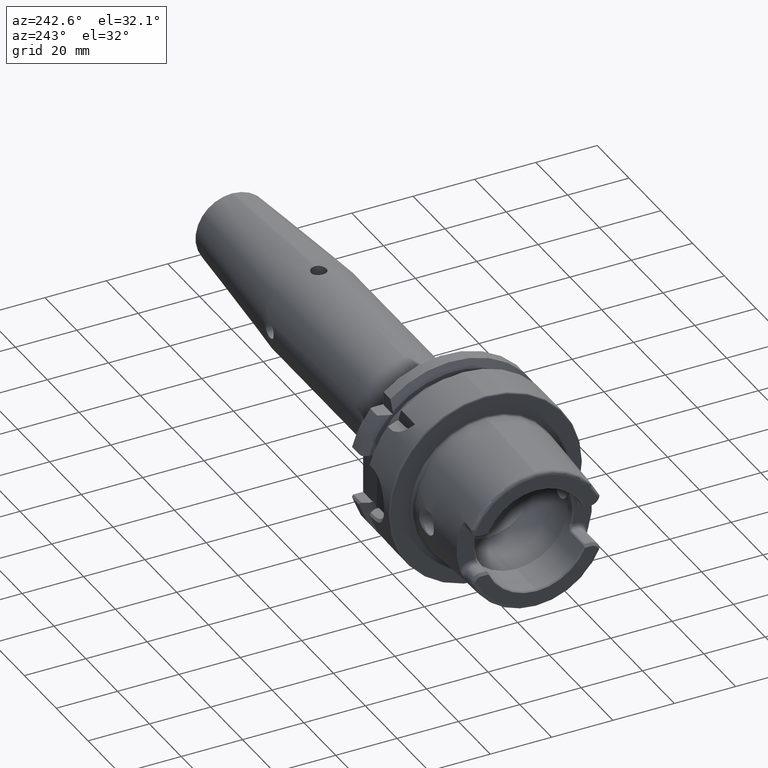
[diagram: clean part render]
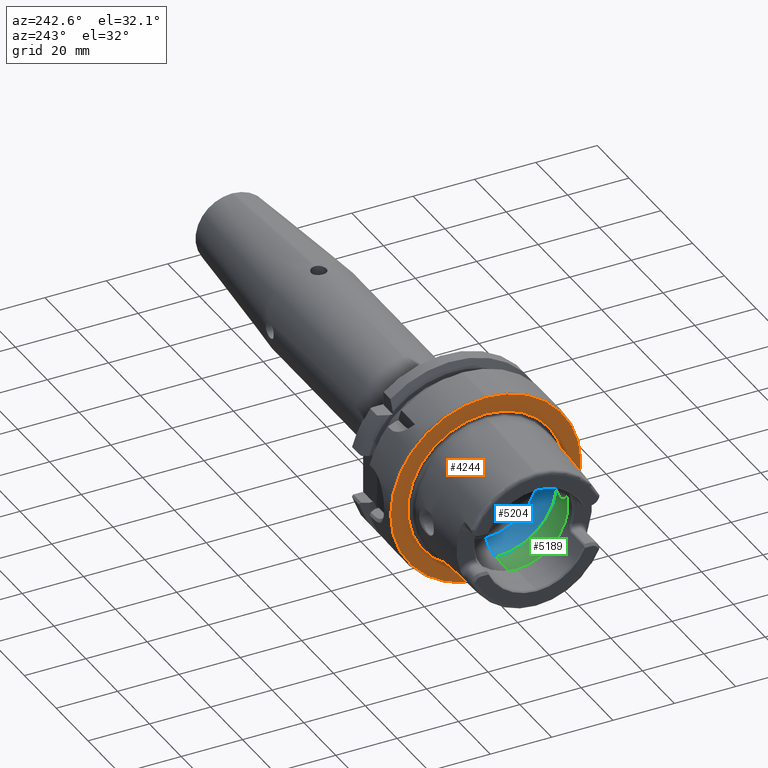
[diagram: same view with three faces highlighted in distinct colors, each labeled with its STEP entity id]
A machine part, auxiliary view with three faces highlighted in distinct colors.
Their STEP definitions:

[orange] entity #4244 — the highlighted planar face has unit normal (1, 0, 0).
#1121=CARTESIAN_POINT('',(0.E0,0.E0,0.E0));
#1122=DIRECTION('',(1.E0,0.E0,0.E0));
#1123=DIRECTION('',(0.E0,0.E0,-1.E0));
#1124=AXIS2_PLACEMENT_3D('',#1121,#1122,#1123);
#1126=CARTESIAN_POINT('',(0.E0,0.E0,0.E0));
#1127=DIRECTION('',(1.E0,0.E0,0.E0));
#1128=DIRECTION('',(0.E0,0.E0,1.E0));
#1129=AXIS2_PLACEMENT_3D('',#1126,#1127,#1128);
#1131=CARTESIAN_POINT('',(0.E0,0.E0,0.E0));
#1132=DIRECTION('',(-1.E0,0.E0,0.E0));
#1133=DIRECTION('',(0.E0,0.E0,1.E0));
#1134=AXIS2_PLACEMENT_3D('',#1131,#1132,#1133);
#1136=CARTESIAN_POINT('',(0.E0,0.E0,0.E0));
#1137=DIRECTION('',(-1.E0,0.E0,0.E0));
#1138=DIRECTION('',(0.E0,0.E0,-1.E0));
#1139=AXIS2_PLACEMENT_3D('',#1136,#1137,#1138);
#2733=CARTESIAN_POINT('',(0.E0,0.E0,-2.54204E1));
#2734=CARTESIAN_POINT('',(0.E0,0.E0,2.54204E1));
#2735=VERTEX_POINT('',#2733);
#2736=VERTEX_POINT('',#2734);
#3062=CARTESIAN_POINT('',(0.E0,0.E0,3.1E1));
#3063=CARTESIAN_POINT('',(0.E0,1.138921523207E-14,-3.1E1));
#3064=VERTEX_POINT('',#3062);
#3065=VERTEX_POINT('',#3063);
#4228=CARTESIAN_POINT('',(0.E0,0.E0,0.E0));
#4229=DIRECTION('',(1.E0,0.E0,0.E0));
#4230=DIRECTION('',(0.E0,0.E0,1.E0));
#4231=AXIS2_PLACEMENT_3D('',#4228,#4229,#4230);
#4232=PLANE('',#4231);
#4233=ORIENTED_EDGE('',*,*,#4218,.F.);
#4235=ORIENTED_EDGE('',*,*,#4234,.F.);
#4236=EDGE_LOOP('',(#4233,#4235));
#4237=FACE_OUTER_BOUND('',#4236,.F.);
#4239=ORIENTED_EDGE('',*,*,#4238,.F.);
#4241=ORIENTED_EDGE('',*,*,#4240,.F.);
#4242=EDGE_LOOP('',(#4239,#4241));
#4243=FACE_BOUND('',#4242,.F.);
#4244=ADVANCED_FACE('',(#4237,#4243),#4232,.F.);
#1125=CIRCLE('',#1124,2.54204E1);
#1130=CIRCLE('',#1129,2.54204E1);
#1135=CIRCLE('',#1134,3.1E1);
#1140=CIRCLE('',#1139,3.1E1);
#4218=EDGE_CURVE('',#3064,#3065,#1135,.T.);
#4234=EDGE_CURVE('',#3065,#3064,#1140,.T.);
#4238=EDGE_CURVE('',#2735,#2736,#1125,.T.);
#4240=EDGE_CURVE('',#2736,#2735,#1130,.T.);

[blue] entity #5204 — the highlighted toroidal blend (fillet) surface has major radius 11.7986 mm and minor (blend) radius 8.2014 mm.
#267=CARTESIAN_POINT('',(9.100685570619E-2,0.E0,0.E0));
#268=DIRECTION('',(1.E0,0.E0,0.E0));
#269=DIRECTION('',(0.E0,0.E0,1.E0));
#270=AXIS2_PLACEMENT_3D('',#267,#268,#269);
#1891=CARTESIAN_POINT('',(-6.25E0,-1.983683432405E1,-2.549509756796E0));
#1893=CARTESIAN_POINT('',(-6.25E0,-1.983683432405E1,2.549509756796E0));
#1909=CARTESIAN_POINT('',(-6.25E0,0.E0,0.E0));
#1910=DIRECTION('',(1.E0,0.E0,0.E0));
#1911=DIRECTION('',(0.E0,0.E0,1.E0));
#1912=AXIS2_PLACEMENT_3D('',#1909,#1910,#1911);
#1922=CARTESIAN_POINT('',(-6.25E0,0.E0,0.E0));
#1923=DIRECTION('',(1.E0,0.E0,0.E0));
#1924=DIRECTION('',(0.E0,-9.918417211620E-1,-1.274754884772E-1));
#1925=AXIS2_PLACEMENT_3D('',#1922,#1923,#1924);
#1927=CARTESIAN_POINT('',(-6.25E0,-1.983683432405E1,-2.549509756796E0));
#1928=CARTESIAN_POINT('',(-6.101283299350E0,-1.985745106764E1,
-2.389098161705E0));
#1929=CARTESIAN_POINT('',(-5.823011759718E0,-1.989111915045E1,
-2.033654081724E0));
#1930=CARTESIAN_POINT('',(-5.488290434370E0,-1.992204764600E1,
-1.383194941896E0));
#1931=CARTESIAN_POINT('',(-5.289411510405E0,-1.993633365189E1,
-6.797937079503E-1));
#1932=CARTESIAN_POINT('',(-5.25E0,-1.993880636712E1,-2.232966073821E-1));
#1933=CARTESIAN_POINT('',(-5.25E0,-1.993880636712E1,-1.256780224004E-14));
#1935=CARTESIAN_POINT('',(-6.25E0,0.E0,-1.179860506927E1));
#1936=DIRECTION('',(0.E0,1.E0,0.E0));
#1937=DIRECTION('',(7.731620031199E-1,0.E0,-6.342085752586E-1));
#1938=AXIS2_PLACEMENT_3D('',#1935,#1936,#1937);
#1940=CARTESIAN_POINT('',(-6.25E0,0.E0,1.179860506927E1));
#1941=DIRECTION('',(0.E0,-1.E0,0.E0));
#1942=DIRECTION('',(7.731620031199E-1,0.E0,6.342085752586E-1));
#1943=AXIS2_PLACEMENT_3D('',#1940,#1941,#1942);
#1945=CARTESIAN_POINT('',(-5.25E0,-1.993880636712E1,-1.256780224004E-14));
#1946=CARTESIAN_POINT('',(-5.25E0,-1.993880636712E1,2.265312399457E-1));
#1947=CARTESIAN_POINT('',(-5.290704077549E0,-1.993625163992E1,
6.873696590481E-1));
#1948=CARTESIAN_POINT('',(-5.490534556484E0,-1.992186156005E1,
1.388204097733E0));
#1949=CARTESIAN_POINT('',(-5.824328578687E0,-1.989096611667E1,
2.035393791106E0));
#1950=CARTESIAN_POINT('',(-6.101748857213E0,-1.985738652689E1,
2.389600330454E0));
#1951=CARTESIAN_POINT('',(-6.25E0,-1.983683432405E1,2.549509756796E0));
#2701=CARTESIAN_POINT('',(9.100685570619E-2,0.E0,-1.7E1));
#2702=CARTESIAN_POINT('',(9.100685570619E-2,0.E0,1.7E1));
#2703=VERTEX_POINT('',#2701);
#2704=VERTEX_POINT('',#2702);
#2705=CARTESIAN_POINT('',(-6.25E0,0.E0,-1.99999999E1));
#2706=VERTEX_POINT('',#2705);
#2707=CARTESIAN_POINT('',(-6.25E0,0.E0,1.99999999E1));
#2708=VERTEX_POINT('',#2707);
#3000=VERTEX_POINT('',#1891);
#3001=VERTEX_POINT('',#1893);
#3003=VERTEX_POINT('',#1933);
#5190=CARTESIAN_POINT('',(-6.25E0,0.E0,0.E0));
#5191=DIRECTION('',(1.E0,0.E0,0.E0));
#5192=DIRECTION('',(0.E0,0.E0,1.E0));
#5193=AXIS2_PLACEMENT_3D('',#5190,#5191,#5192);
#5194=TOROIDAL_SURFACE('',#5193,1.179860506927E1,8.201394830732E0);
#5195=ORIENTED_EDGE('',*,*,#5129,.F.);
#5196=ORIENTED_EDGE('',*,*,#5185,.T.);
#5197=ORIENTED_EDGE('',*,*,#5147,.F.);
#5198=ORIENTED_EDGE('',*,*,#3402,.F.);
#5199=ORIENTED_EDGE('',*,*,#5144,.T.);
#5200=ORIENTED_EDGE('',*,*,#5179,.T.);
#5201=ORIENTED_EDGE('',*,*,#5069,.F.);
#5202=EDGE_LOOP('',(#5195,#5196,#5197,#5198,#5199,#5200,#5201));
#5203=FACE_OUTER_BOUND('',#5202,.F.);
#5204=ADVANCED_FACE('',(#5203),#5194,.F.);
#271=CIRCLE('',#270,1.7E1);
#1913=CIRCLE('',#1912,1.99999999E1);
#1926=CIRCLE('',#1925,1.99999999E1);
#1934=B_SPLINE_CURVE_WITH_KNOTS('',3,(#1927,#1928,#1929,#1930,#1931,#1932,
#1933),.UNSPECIFIED.,.F.,.F.,(4,1,1,1,4),(0.E0,2.5E-1,5.E-1,7.5E-1,1.E0),
.UNSPECIFIED.);
#1939=CIRCLE('',#1938,8.201394830732E0);
#1944=CIRCLE('',#1943,8.201394830732E0);
#1952=B_SPLINE_CURVE_WITH_KNOTS('',3,(#1945,#1946,#1947,#1948,#1949,#1950,
#1951),.UNSPECIFIED.,.F.,.F.,(4,1,1,1,4),(0.E0,2.5E-1,5.E-1,7.5E-1,1.E0),
.UNSPECIFIED.);
#3402=EDGE_CURVE('',#2704,#2703,#271,.T.);
#5069=EDGE_CURVE('',#3003,#3001,#1952,.T.);
#5129=EDGE_CURVE('',#3000,#3003,#1934,.T.);
#5144=EDGE_CURVE('',#2704,#2708,#1944,.T.);
#5147=EDGE_CURVE('',#2703,#2706,#1939,.T.);
#5179=EDGE_CURVE('',#2708,#3001,#1913,.T.);
#5185=EDGE_CURVE('',#3000,#2706,#1926,.T.);

[green] entity #5189 — the highlighted cylindrical surface (partial cylindrical patch) has radius 20 mm, axis along (1, 0, 0).
#1877=CARTESIAN_POINT('',(-1.275E1,-1.99999999E1,0.E0));
#1878=CARTESIAN_POINT('',(-1.275E1,-1.99999999E1,-2.521013685529E-1));
#1879=CARTESIAN_POINT('',(-1.270027737553E1,-1.999058859895E1,
-7.456987717207E-1));
#1880=CARTESIAN_POINT('',(-1.247854943360E1,-1.995021036686E1,
-1.467027006737E0));
#1881=CARTESIAN_POINT('',(-1.211813851842E1,-1.988977616026E1,
-2.127402050047E0));
#1882=CARTESIAN_POINT('',(-1.163726074685E1,-1.981912729168E1,
-2.701011039733E0));
#1883=CARTESIAN_POINT('',(-1.104729243051E1,-1.974836703805E1,
-3.171513422847E0));
#1884=CARTESIAN_POINT('',(-1.038040066941E1,-1.968954201551E1,
-3.513815501315E0));
#1885=CARTESIAN_POINT('',(-9.647982002938E0,-1.965127008206E1,
-3.719177177137E0));
#1886=CARTESIAN_POINT('',(-8.900887994509E0,-1.964074836162E1,
-3.773595275991E0));
#1887=CARTESIAN_POINT('',(-8.152676684205E0,-1.965899391744E1,
-3.678552226110E0));
#1888=CARTESIAN_POINT('',(-7.437021749638E0,-1.970321634602E1,
-3.437832059909E0));
#1889=CARTESIAN_POINT('',(-6.766283038869E0,-1.976880152585E1,
-3.043174584824E0));
#1890=CARTESIAN_POINT('',(-6.412053249105E0,-1.981436872154E1,
-2.724306669752E0));
#1891=CARTESIAN_POINT('',(-6.25E0,-1.983683432405E1,-2.549509756796E0));
#1893=CARTESIAN_POINT('',(-6.25E0,-1.983683432405E1,2.549509756796E0));
#1894=CARTESIAN_POINT('',(-6.412615640680E0,-1.981429075664E1,
2.724913287093E0));
#1895=CARTESIAN_POINT('',(-6.767922365933E0,-1.976858507722E1,
3.044642999749E0));
#1896=CARTESIAN_POINT('',(-7.442004779313E0,-1.970279837136E1,
3.440215689278E0));
#1897=CARTESIAN_POINT('',(-8.157184233515E0,-1.965882665966E1,
3.679417749825E0));
#1898=CARTESIAN_POINT('',(-8.903475487327E0,-1.964074202939E1,
3.773631892091E0));
#1899=CARTESIAN_POINT('',(-9.650936081239E0,-1.965137398590E1,
3.718629939811E0));
#1900=CARTESIAN_POINT('',(-1.038170311499E1,-1.968964959960E1,
3.513217405331E0));
#1901=CARTESIAN_POINT('',(-1.104809586369E1,-1.974845673600E1,
3.170933053688E0));
#1902=CARTESIAN_POINT('',(-1.163703767481E1,-1.981910322290E1,
2.701157287313E0));
#1903=CARTESIAN_POINT('',(-1.211800725292E1,-1.988975364888E1,2.127612236E0));
#1904=CARTESIAN_POINT('',(-1.247839689009E1,-1.995018418162E1,
1.467360516410E0));
#1905=CARTESIAN_POINT('',(-1.270021633428E1,-1.999057683853E1,
7.460576467196E-1));
#1906=CARTESIAN_POINT('',(-1.275E1,-1.99999999E1,2.522499085260E-1));
#1907=CARTESIAN_POINT('',(-1.275E1,-1.99999999E1,0.E0));
#1909=CARTESIAN_POINT('',(-6.25E0,0.E0,0.E0));
#1910=DIRECTION('',(1.E0,0.E0,0.E0));
#1911=DIRECTION('',(0.E0,0.E0,1.E0));
#1912=AXIS2_PLACEMENT_3D('',#1909,#1910,#1911);
#1914=DIRECTION('',(-1.E0,0.E0,0.E0));
#1915=VECTOR('',#1914,1.101397465395E1);
#1916=CARTESIAN_POINT('',(-6.25E0,0.E0,1.99999999E1));
#1917=LINE('',#1916,#1915);
#1918=DIRECTION('',(-1.E0,0.E0,0.E0));
#1919=VECTOR('',#1918,1.101397465395E1);
#1920=CARTESIAN_POINT('',(-6.25E0,0.E0,-1.99999999E1));
#1921=LINE('',#1920,#1919);
#1922=CARTESIAN_POINT('',(-6.25E0,0.E0,0.E0));
#1923=DIRECTION('',(1.E0,0.E0,0.E0));
#1924=DIRECTION('',(0.E0,-9.918417211620E-1,-1.274754884772E-1));
#1925=AXIS2_PLACEMENT_3D('',#1922,#1923,#1924);
#1957=CARTESIAN_POINT('',(-1.726397465395E1,0.E0,0.E0));
#1958=DIRECTION('',(-1.E0,0.E0,0.E0));
#1959=DIRECTION('',(0.E0,0.E0,-1.E0));
#1960=AXIS2_PLACEMENT_3D('',#1957,#1958,#1959);
#2693=CARTESIAN_POINT('',(-1.726397465395E1,0.E0,-1.99999999E1));
#2694=CARTESIAN_POINT('',(-1.726397465395E1,0.E0,1.99999999E1));
#2695=VERTEX_POINT('',#2693);
#2696=VERTEX_POINT('',#2694);
#2705=CARTESIAN_POINT('',(-6.25E0,0.E0,-1.99999999E1));
#2706=VERTEX_POINT('',#2705);
#2707=CARTESIAN_POINT('',(-6.25E0,0.E0,1.99999999E1));
#2708=VERTEX_POINT('',#2707);
#2999=VERTEX_POINT('',#1877);
#3000=VERTEX_POINT('',#1891);
#3001=VERTEX_POINT('',#1893);
#5172=CARTESIAN_POINT('',(0.E0,0.E0,0.E0));
#5173=DIRECTION('',(1.E0,0.E0,0.E0));
#5174=DIRECTION('',(0.E0,0.E0,1.E0));
#5175=AXIS2_PLACEMENT_3D('',#5172,#5173,#5174);
#5176=CYLINDRICAL_SURFACE('',#5175,1.99999999E1);
#5177=ORIENTED_EDGE('',*,*,#5127,.F.);
#5178=ORIENTED_EDGE('',*,*,#5071,.F.);
#5180=ORIENTED_EDGE('',*,*,#5179,.F.);
#5181=ORIENTED_EDGE('',*,*,#5165,.T.);
#5183=ORIENTED_EDGE('',*,*,#5182,.F.);
#5184=ORIENTED_EDGE('',*,*,#5161,.F.);
#5186=ORIENTED_EDGE('',*,*,#5185,.F.);
#5187=EDGE_LOOP('',(#5177,#5178,#5180,#5181,#5183,#5184,#5186));
#5188=FACE_OUTER_BOUND('',#5187,.F.);
#5189=ADVANCED_FACE('',(#5188),#5176,.F.);
#1892=B_SPLINE_CURVE_WITH_KNOTS('',3,(#1877,#1878,#1879,#1880,#1881,#1882,#1883,
#1884,#1885,#1886,#1887,#1888,#1889,#1890,#1891),.UNSPECIFIED.,.F.,.F.,(4,1,1,1,
1,1,1,1,1,1,1,1,4),(0.E0,8.333333333333E-2,1.666666666667E-1,2.5E-1,
3.333333333333E-1,4.166666666667E-1,5.E-1,5.833333333333E-1,6.666666666667E-1,
7.5E-1,8.333333333333E-1,9.166666666667E-1,1.E0),.UNSPECIFIED.);
#1908=B_SPLINE_CURVE_WITH_KNOTS('',3,(#1893,#1894,#1895,#1896,#1897,#1898,#1899,
#1900,#1901,#1902,#1903,#1904,#1905,#1906,#1907),.UNSPECIFIED.,.F.,.F.,(4,1,1,1,
1,1,1,1,1,1,1,1,4),(0.E0,8.333333333333E-2,1.666666666667E-1,2.5E-1,
3.333333333333E-1,4.166666666667E-1,5.E-1,5.833333333333E-1,6.666666666667E-1,
7.5E-1,8.333333333333E-1,9.166666666667E-1,1.E0),.UNSPECIFIED.);
#1913=CIRCLE('',#1912,1.99999999E1);
#1926=CIRCLE('',#1925,1.99999999E1);
#1961=CIRCLE('',#1960,1.99999999E1);
#5071=EDGE_CURVE('',#3001,#2999,#1908,.T.);
#5127=EDGE_CURVE('',#2999,#3000,#1892,.T.);
#5161=EDGE_CURVE('',#2706,#2695,#1921,.T.);
#5165=EDGE_CURVE('',#2708,#2696,#1917,.T.);
#5179=EDGE_CURVE('',#2708,#3001,#1913,.T.);
#5182=EDGE_CURVE('',#2695,#2696,#1961,.T.);
#5185=EDGE_CURVE('',#3000,#2706,#1926,.T.);